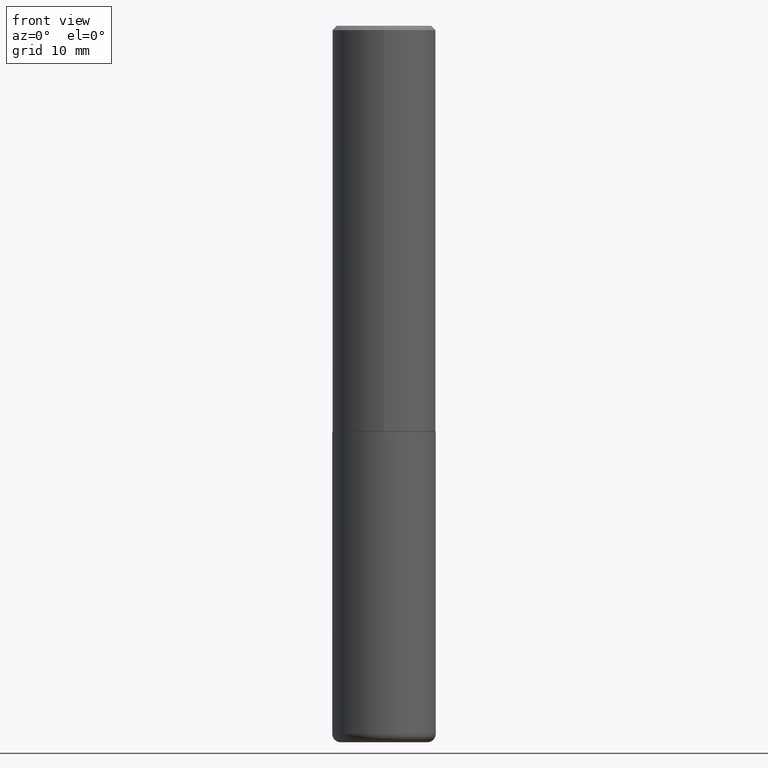
[diagram: clean part render]
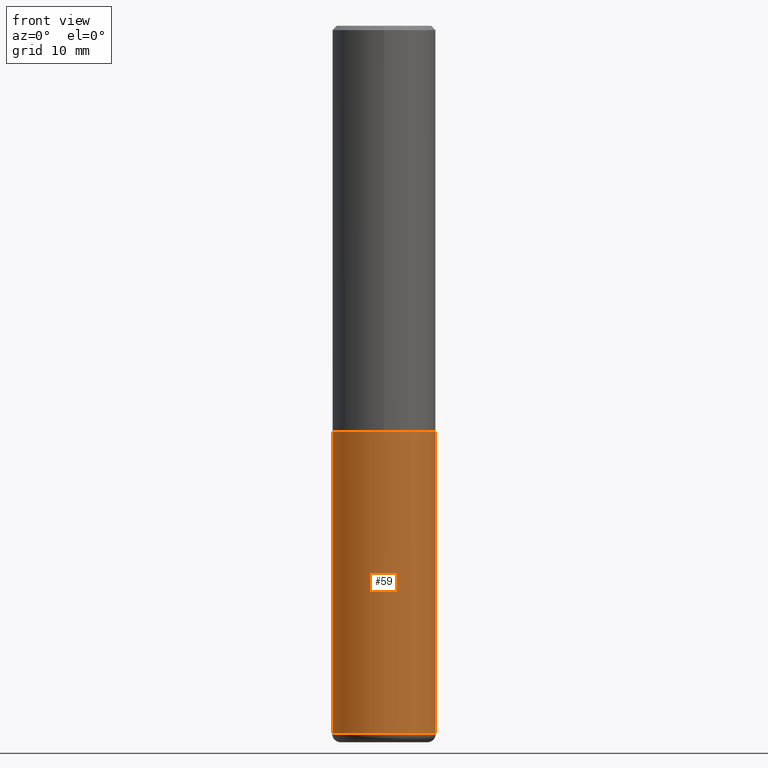
[diagram: same view with one face highlighted and labeled with its STEP entity id]
A machine part, front view. The second image highlights one B-rep face of the part: STEP entity #59.
In plain terms, the highlighted cylindrical surface (partial cylindrical patch) has radius 5.9995 mm, axis along (-0, 0, 1).
Its self-contained STEP definition (entity closure, byte-faithful):
#15 = DIRECTION ( 'NONE',  ( -2.445468806185136597E-29, 3.491481338843145583E-15, 1.000000000000000000 ) ) ;
#19 = LINE ( 'NONE', #145, #381 ) ;
#53 = AXIS2_PLACEMENT_3D ( 'NONE', #368, #15, #260 ) ;
#59 = ADVANCED_FACE ( 'NONE', ( #374 ), #359, .T. ) ;
#68 = CARTESIAN_POINT ( 'NONE',  ( 7.894706947007477118E-29, -1.127154920618732880E-14, -3.228299999999999947 ) ) ;
#76 = CIRCLE ( 'NONE', #227, 0.2361999999999999933 ) ;
#87 = CARTESIAN_POINT ( 'NONE',  ( -0.2361999999999999933, -7.187791195925986796E-15, -1.850400000000000267 ) ) ;
#89 = DIRECTION ( 'NONE',  ( -2.445468806185136877E-29, 3.491481338843145188E-15, 1.000000000000000000 ) ) ;
#92 = EDGE_CURVE ( 'NONE', #265, #182, #178, .T. ) ;
#93 = ORIENTED_EDGE ( 'NONE', *, *, #398, .F. ) ;
#116 = CARTESIAN_POINT ( 'NONE',  ( 0.2362000000000000210, -1.292092499065682375E-14, -3.228299999999999947 ) ) ;
#136 = VERTEX_POINT ( 'NONE', #251 ) ;
#145 = CARTESIAN_POINT ( 'NONE',  ( 0.2361999999999999933, -1.649375784469496131E-15, 1.151752954443000088E-29 ) ) ;
#146 = CARTESIAN_POINT ( 'NONE',  ( -0.2361999999999999933, 1.678301941865356591E-15, -1.161852468318208757E-29 ) ) ;
#149 = ORIENTED_EDGE ( 'NONE', *, *, #220, .T. ) ;
#169 = VERTEX_POINT ( 'NONE', #116 ) ;
#178 = LINE ( 'NONE', #146, #305 ) ;
#182 = VERTEX_POINT ( 'NONE', #87 ) ;
#195 = DIRECTION ( 'NONE',  ( 1.000000000000000000, -6.982962677686265133E-15, 0.000000000000000000 ) ) ;
#213 = DIRECTION ( 'NONE',  ( -2.445468806185136877E-29, 3.491481338843145188E-15, 1.000000000000000000 ) ) ;
#220 = EDGE_CURVE ( 'NONE', #169, #136, #19, .T. ) ;
#226 = DIRECTION ( 'NONE',  ( 1.000000000000000000, -6.982962677686269077E-15, 0.000000000000000000 ) ) ;
#227 = AXIS2_PLACEMENT_3D ( 'NONE', #316, #390, #226 ) ;
#246 = ORIENTED_EDGE ( 'NONE', *, *, #92, .F. ) ;
#251 = CARTESIAN_POINT ( 'NONE',  ( 0.2361999999999999933, -8.110012853864854101E-15, -1.850400000000000267 ) ) ;
#253 = EDGE_LOOP ( 'NONE', ( #246, #298, #149, #93 ) ) ;
#260 = DIRECTION ( 'NONE',  ( 1.000000000000000000, -6.982962677686266711E-15, 4.876176775795936353E-29 ) ) ;
#265 = VERTEX_POINT ( 'NONE', #338 ) ;
#296 = CIRCLE ( 'NONE', #317, 0.2361999999999999933 ) ;
#298 = ORIENTED_EDGE ( 'NONE', *, *, #380, .T. ) ;
#305 = VECTOR ( 'NONE', #89, 39.37007874015748143 ) ;
#315 = DIRECTION ( 'NONE',  ( -2.445468806185136597E-29, 3.491481338843145583E-15, 1.000000000000000000 ) ) ;
#316 = CARTESIAN_POINT ( 'NONE',  ( 4.525095478964977394E-29, -6.460637069395357576E-15, -1.850400000000000267 ) ) ;
#317 = AXIS2_PLACEMENT_3D ( 'NONE', #68, #315, #195 ) ;
#338 = CARTESIAN_POINT ( 'NONE',  ( -0.2362000000000000210, -9.593247264321970832E-15, -3.228299999999999947 ) ) ;
#359 = CYLINDRICAL_SURFACE ( 'NONE', #53, 0.2361999999999999933 ) ;
#368 = CARTESIAN_POINT ( 'NONE',  ( 0.000000000000000000, 0.000000000000000000, 0.000000000000000000 ) ) ;
#374 = FACE_OUTER_BOUND ( 'NONE', #253, .T. ) ;
#380 = EDGE_CURVE ( 'NONE', #265, #169, #296, .T. ) ;
#381 = VECTOR ( 'NONE', #213, 39.37007874015748143 ) ;
#390 = DIRECTION ( 'NONE',  ( -2.445468806185136597E-29, 3.491481338843145583E-15, 1.000000000000000000 ) ) ;
#398 = EDGE_CURVE ( 'NONE', #182, #136, #76, .T. ) ;